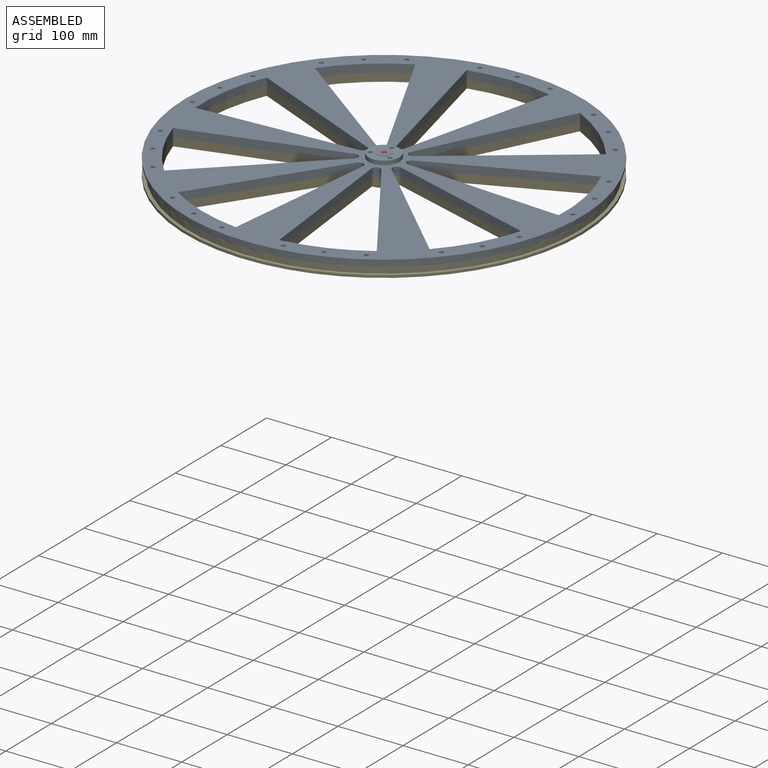
[diagram: assembled view]
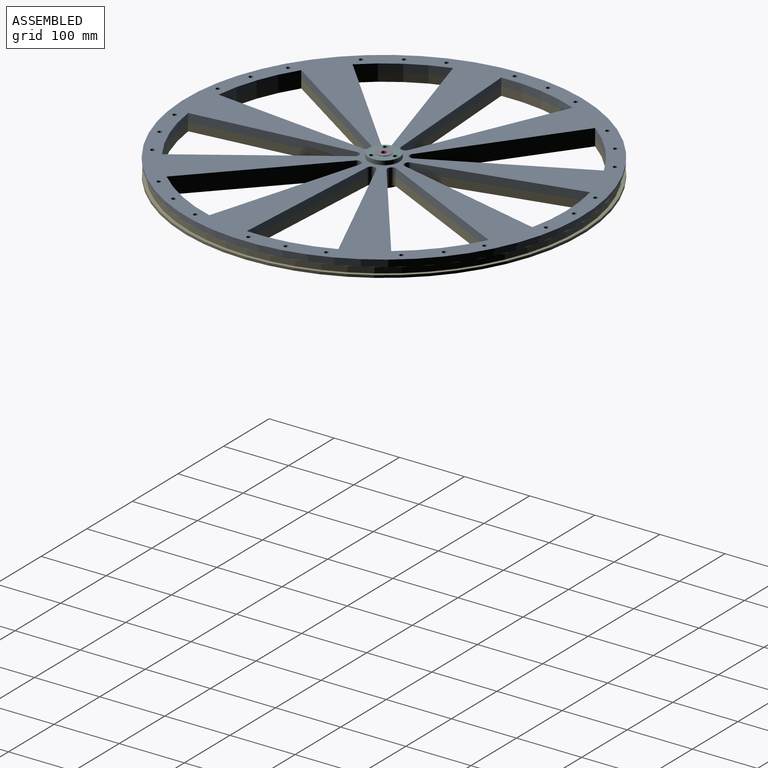
[diagram: assembled view, second angle]
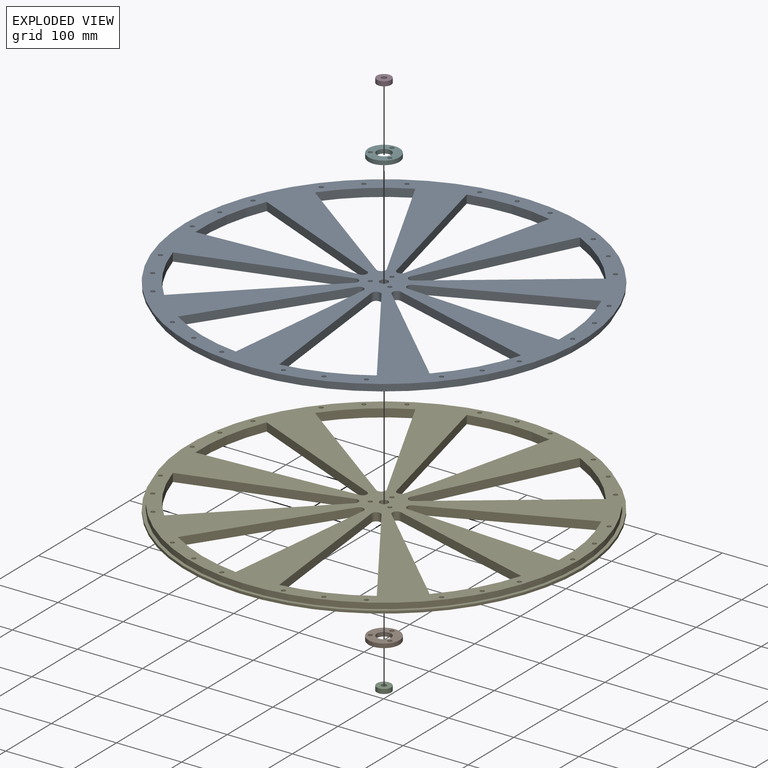
[diagram: exploded view]
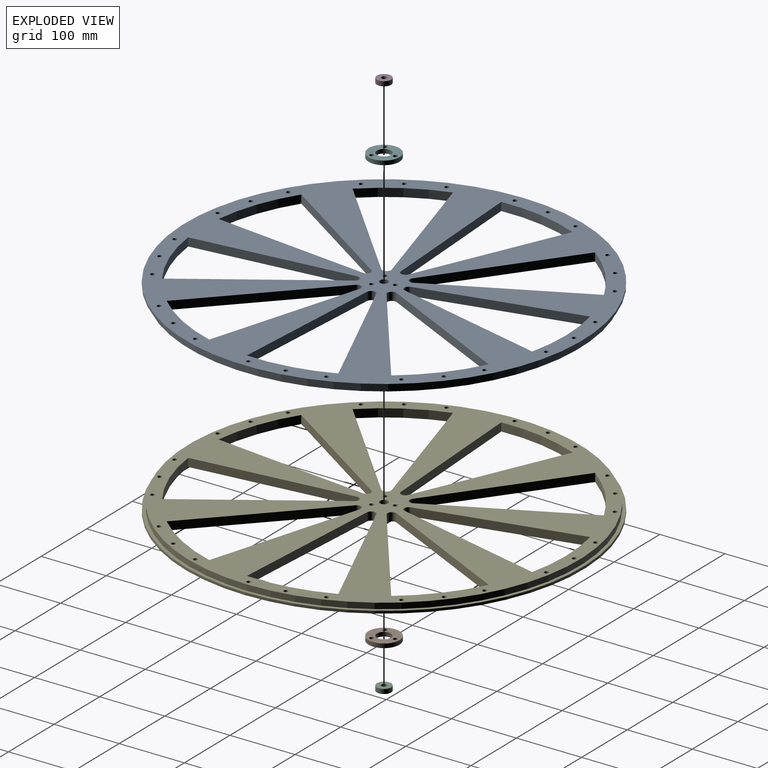
[diagram: exploded view, second angle]
ASSEMBLY  parts=6 mates=5
PART A: 72 faces, bbox 609.6x609.6x12.7 mm
  f0: cylinder r=6.72mm len=12.87mm, axis (0,0,-1), area 227.7mm2, adj f1,f29,f67,f68
  f1: plane 241.88x15.19mm, normal (-0.06,1,0), area 3078mm2, adj f0,f2,f67,f68
  f2: cylinder r=279.4mm len=125.07mm, axis (0,0,-1), area 1627.1mm2, adj f1,f29,f67,f68
  f3: cylinder r=6.72mm len=12.7mm, axis (0,0,-1), area 227.7mm2, adj f4,f58,f67,f68
  f4: plane 195.06x143.84mm, normal (0.59,0.8,0), area 3078mm2, adj f3,f5,f67,f68
  f5: cylinder r=279.4mm len=97.29mm, axis (0,0,-1), area 1627.1mm2, adj f4,f58,f67,f68
  f6: cylinder r=6.72mm len=12.7mm, axis (0,0,-1), area 227.7mm2, adj f7,f59,f67,f68
  f7: plane 175.53x167.12mm, normal (-0.69,0.72,0), area 3078mm2, adj f6,f8,f67,f68
  f8: cylinder r=279.4mm len=109.99mm, axis (0,0,-1), area 1627.1mm2, adj f7,f59,f67,f68
  f9: cylinder r=6.72mm len=12.7mm, axis (0,0,-1), area 227.7mm2, adj f10,f60,f67,f68
  f10: plane 240.85x27.04mm, normal (-0.99,0.11,0), area 3078mm2, adj f9,f11,f67,f68
  f11: cylinder r=279.4mm len=119.34mm, axis (0,0,-1), area 1627.1mm2, adj f10,f60,f67,f68
  f12: cylinder r=6.72mm len=12.7mm, axis (0,0,-1), area 227.7mm2, adj f13,f61,f67,f68
  f13: plane 201.88x134.1mm, normal (-0.83,-0.55,0), area 3078mm2, adj f12,f14,f67,f68
  f14: cylinder r=279.4mm len=119.34mm, axis (0,0,-1), area 1627.1mm2, adj f13,f61,f67,f68
  f15: cylinder r=6.72mm len=12.7mm, axis (0,0,-1), area 227.7mm2, adj f16,f62,f67,f68
  f16: plane 232.49x68.45mm, normal (-0.28,-0.96,0), area 3078mm2, adj f15,f17,f67,f68
  f17: cylinder r=279.4mm len=109.99mm, axis (0,0,-1), area 1627.1mm2, adj f16,f62,f67,f68
  f18: cylinder r=6.72mm len=12.87mm, axis (0,0,-1), area 227.7mm2, adj f19,f63,f67,f68
  f19: plane 222.1x97.01mm, normal (0.4,-0.92,0), area 3078mm2, adj f18,f20,f67,f68
  f20: cylinder r=279.4mm len=125.07mm, axis (0,0,-1), area 1627.1mm2, adj f19,f63,f67,f68
  f21: cylinder r=6.72mm len=12.7mm, axis (0,0,-1), area 227.7mm2, adj f22,f64,f67,f68
  f22: plane 217.07x107.78mm, normal (0.9,-0.44,0), area 3078mm2, adj f21,f23,f67,f68
  f23: cylinder r=279.4mm len=97.29mm, axis (0,0,-1), area 1627.1mm2, adj f22,f64,f67,f68
  f24: cylinder r=6.72mm len=13.07mm, axis (0,0,-1), area 227.7mm2, adj f25,f65,f67,f68
  f25: plane 235.57x56.97mm, normal (0.97,0.24,0), area 3078mm2, adj f24,f26,f67,f68
  f26: cylinder r=279.4mm len=127mm, axis (0,0,-1), area 1627.1mm2, adj f25,f65,f67,f68
  f27: cylinder r=3.17mm len=12.7mm, axis (0,0,-1), area 253.4mm2, adj f67,f68
  f28: cylinder r=3.17mm len=12.7mm, axis (0,0,-1), area 253.4mm2, adj f67,f68
  f29: plane 222.1x97.01mm, normal (-0.4,-0.92,0), area 3078mm2, adj f0,f2,f67,f68
  f30: cylinder r=299.72mm len=599.44mm, axis (0,0,-1), area 16741.6mm2, adj f67,f70
  f31: cylinder r=3.17mm len=12.7mm, axis (0,0,-1), area 253.4mm2, adj f67,f68
  f32: cylinder r=3.17mm len=12.7mm, axis (0,0,-1), area 253.4mm2, adj f67,f68
  f33: cylinder r=3.17mm len=12.7mm, axis (0,0,-1), area 253.4mm2, adj f67,f68
  f34: cylinder r=3.17mm len=12.7mm, axis (0,0,-1), area 253.4mm2, adj f67,f68
  f35: cylinder r=3.17mm len=12.7mm, axis (0,0,-1), area 253.4mm2, adj f67,f68
  f36: cylinder r=3.17mm len=12.7mm, axis (0,0,-1), area 253.4mm2, adj f67,f68
  f37: cylinder r=3.17mm len=12.7mm, axis (0,0,-1), area 253.4mm2, adj f67,f68
  f38: cylinder r=3.17mm len=12.7mm, axis (0,0,-1), area 253.4mm2, adj f67,f68
  f39: cylinder r=3.17mm len=12.7mm, axis (0,0,-1), area 253.4mm2, adj f67,f68
  f40: cylinder r=3.17mm len=12.7mm, axis (0,0,-1), area 253.4mm2, adj f67,f68
  f41: cylinder r=3.17mm len=12.7mm, axis (0,0,-1), area 253.4mm2, adj f67,f68
  f42: cylinder r=3.17mm len=12.7mm, axis (0,0,-1), area 253.4mm2, adj f67,f68
  f43: cylinder r=3.17mm len=12.7mm, axis (0,0,-1), area 253.4mm2, adj f67,f68
  f44: cylinder r=3.17mm len=12.7mm, axis (0,0,-1), area 253.4mm2, adj f67,f68
  f45: cylinder r=3.17mm len=12.7mm, axis (0,0,-1), area 253.4mm2, adj f67,f68
  f46: cylinder r=3.17mm len=12.7mm, axis (0,0,-1), area 253.4mm2, adj f67,f68
  f47: cylinder r=3.17mm len=12.7mm, axis (0,0,-1), area 253.4mm2, adj f67,f68
  f48: cylinder r=3.17mm len=12.7mm, axis (0,0,-1), area 253.4mm2, adj f67,f68
  f49: cylinder r=3.17mm len=12.7mm, axis (0,0,-1), area 253.4mm2, adj f67,f68
  f50: cylinder r=3.17mm len=12.7mm, axis (0,0,-1), area 253.4mm2, adj f67,f68
  f51: cylinder r=3.17mm len=12.7mm, axis (0,0,-1), area 253.4mm2, adj f67,f68
  f52: cylinder r=3.17mm len=12.7mm, axis (0,0,-1), area 253.4mm2, adj f67,f68
  f53: cylinder r=3.17mm len=12.7mm, axis (0,0,-1), area 253.4mm2, adj f67,f68
  f54: cylinder r=3.17mm len=12.7mm, axis (0,0,-1), area 253.4mm2, adj f67,f68
  f55: cylinder r=3.17mm len=12.7mm, axis (0,0,-1), area 253.4mm2, adj f67,f68
  f56: cylinder r=3.17mm len=12.7mm, axis (0,0,-1), area 253.4mm2, adj f67,f68
  f57: cylinder r=3.17mm len=12.7mm, axis (0,0,-1), area 253.4mm2, adj f67,f68
  f58: plane 217.07x107.78mm, normal (-0.9,-0.44,0), area 3078mm2, adj f3,f5,f67,f68
  f59: plane 232.49x68.45mm, normal (0.28,-0.96,0), area 3078mm2, adj f6,f8,f67,f68
  f60: plane 201.88x134.1mm, normal (0.83,-0.55,0), area 3078mm2, adj f9,f11,f67,f68
  f61: plane 240.85x27.04mm, normal (0.99,0.11,0), area 3078mm2, adj f12,f14,f67,f68
  f62: plane 175.53x167.12mm, normal (0.69,0.72,0), area 3078mm2, adj f15,f17,f67,f68
  f63: plane 241.88x15.19mm, normal (0.06,1,0), area 3078mm2, adj f18,f20,f67,f68
  f64: plane 195.06x143.84mm, normal (-0.59,0.8,0), area 3078mm2, adj f21,f23,f67,f68
  f65: plane 235.57x56.97mm, normal (-0.97,0.24,0), area 3078mm2, adj f24,f26,f67,f68
  f66: cylinder r=3.17mm len=12.7mm, axis (0,0,-1), area 253.4mm2, adj f67,f68
  f67: plane 599.44x599.44mm, normal (0,0,1), area 126621.8mm2, adj f0,f1,f2,f3,f4,f5,f6,f7
  f68: plane 609.6x609.6mm, normal (0,0,-1), area 136269.5mm2, adj f0,f1,f2,f3,f4,f5,f6,f7
  f69: cylinder r=304.8mm len=609.6mm, axis (0,0,-1), area 7296.6mm2, adj f68,f70
  f70: plane 609.6x609.6mm, normal (0,0,1), area 9647.7mm2, adj f30,f69
  f71: cylinder r=6.35mm len=12.7mm, axis (0,0,-1), area 506.7mm2, adj f67,f68
PART B: 7 faces, bbox 47.4x47.4x6.4 mm
  f0: cylinder r=3.17mm len=6.35mm, axis (0,0,-1), area 126.7mm2, adj f5,f6
  f1: cylinder r=3.17mm len=6.35mm, axis (0,0,-1), area 126.7mm2, adj f5,f6
  f2: cylinder r=3.17mm len=6.35mm, axis (0,0,-1), area 126.7mm2, adj f5,f6
  f3: cylinder r=11mm len=22mm, axis (0,0,-1), area 438.9mm2, adj f5,f6
  f4: cylinder r=23.7mm len=47.4mm, axis (0,0,-1), area 945.6mm2, adj f5,f6
  f5: plane 47.4x47.4mm, normal (0,0,1), area 1289.5mm2, adj f0,f1,f2,f3,f4
  f6: plane 47.4x47.4mm, normal (0,0,-1), area 1289.5mm2, adj f0,f1,f2,f3,f4
PART C: 4 faces, bbox 22x22x7 mm
  f0: cylinder r=3.97mm len=7.94mm, axis (0,0,-1), area 174.6mm2, adj f2,f3
  f1: cylinder r=11mm len=22mm, axis (0,0,-1), area 483.8mm2, adj f2,f3
  f2: plane 22x22mm, normal (0,0,1), area 330.6mm2, adj f0,f1
  f3: plane 22x22mm, normal (0,0,-1), area 330.6mm2, adj f0,f1
PART D: same geometry as C
PART E: same geometry as A
PART F: same geometry as B
PLACE A rot(axis=(0,1,0),180deg) t=(2.06,-1.95,14.35)mm
PLACE B t=(2.06,-1.95,-17.4)mm
PLACE C t=(2.06,-1.95,-18.05)mm
PLACE D t=(2.06,-1.95,14.35)mm
PLACE E t=(2.06,-1.95,-11.05)mm
PLACE F t=(2.06,-1.95,14.35)mm
MATE fastened B.f4 <-> E.f69  axis (0,0,1) through (2.06,-1.95,-11.05)mm
MATE fastened F.f4 <-> A.f71  axis (0,0,-1) through (2.06,-1.95,14.35)mm
MATE fastened A.f2 <-> E.f71  axis (0,0,-1) through (2.06,-1.95,1.65)mm
MATE fastened C.f0 <-> E.f71  axis (0,0,1) through (2.06,-1.95,-11.05)mm
MATE fastened D.f1 <-> A.f71  axis (0,0,-1) through (2.06,-1.95,14.35)mm
